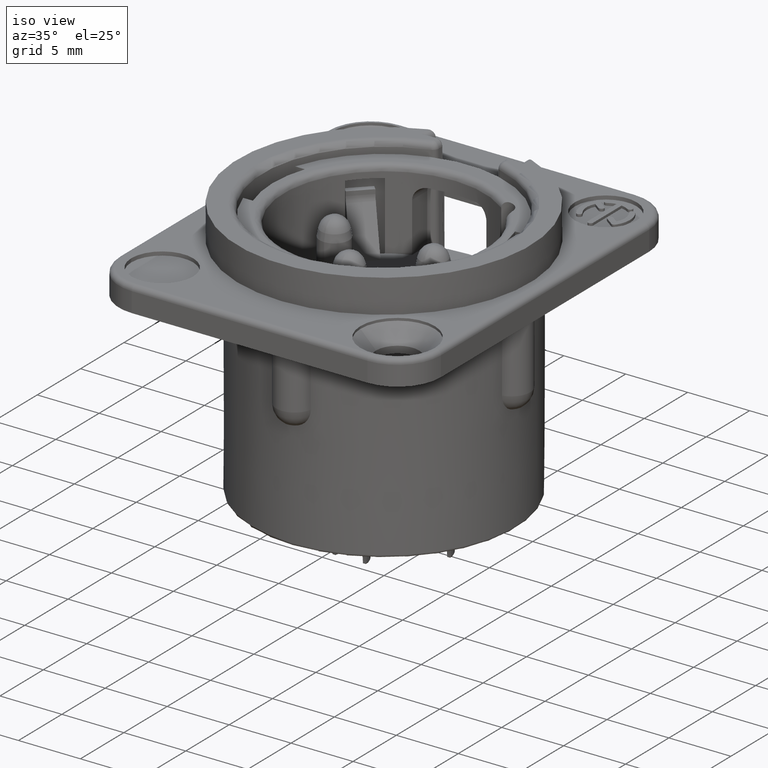
[diagram: clean part render]
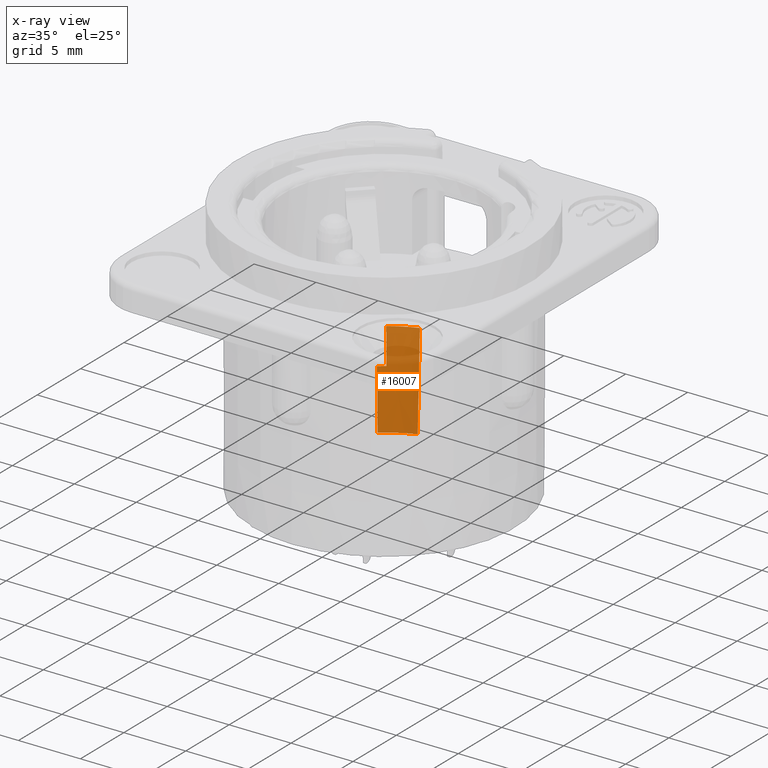
[diagram: x-ray — body ghosted, one internal face saturated and labeled with its STEP entity id]
A machine part, iso view, then the same camera in x-ray: the body is ghosted and one INTERNAL B-rep face — a face not visible from any outside direction — is saturated and labeled: STEP entity #16007.
In plain terms, the highlighted conical surface has half-angle 1 deg.
Its self-contained STEP definition (entity closure, byte-faithful):
#2466=CARTESIAN_POINT('',(-5.599421644429E0,7.184534697666E0,
-1.149650951871E1));
#2467=CARTESIAN_POINT('',(-5.599346924432E0,7.184558939496E0,
-1.149804555295E1));
#2468=CARTESIAN_POINT('',(-5.599221330165E0,7.184588562005E0,
-1.150113001574E1));
#2469=CARTESIAN_POINT('',(-5.599143221622E0,7.184580643993E0,
-1.150423849977E1));
#2470=CARTESIAN_POINT('',(-5.599115990569E0,7.184567341980E0,
-1.150579856576E1));
#2472=CARTESIAN_POINT('',(0.E0,0.E0,-1.149650951871E1));
#2473=DIRECTION('',(0.E0,0.E0,-1.E0));
#2474=DIRECTION('',(-6.147235459580E-1,7.887426462699E-1,0.E0));
#2475=AXIS2_PLACEMENT_3D('',#2472,#2473,#2474);
#2477=CARTESIAN_POINT('',(0.E0,0.E0,-8.594764278069E0));
#2478=DIRECTION('',(0.E0,0.E0,1.E0));
#2479=DIRECTION('',(-3.416517116455E-1,9.398266371676E-1,0.E0));
#2480=AXIS2_PLACEMENT_3D('',#2477,#2478,#2479);
#2482=CARTESIAN_POINT('',(-3.129357351968E0,8.608337723482E0,
-8.594764278072E0));
#2483=CARTESIAN_POINT('',(-3.135616155525E0,8.591554376119E0,
-9.375918961649E0));
#2484=CARTESIAN_POINT('',(-3.148561647450E0,8.556866188820E0,
-1.098766886962E1));
#2485=CARTESIAN_POINT('',(-3.168922513493E0,8.502395970706E0,
-1.350919662458E1));
#2486=CARTESIAN_POINT('',(-3.183860185164E0,8.462504858787E0,
-1.534831740524E1));
#2487=CARTESIAN_POINT('',(-3.191616471074E0,8.441813153089E0,-1.63E1));
#2489=CARTESIAN_POINT('',(0.E0,0.E0,-1.63E1));
#2490=DIRECTION('',(0.E0,0.E0,1.E0));
#2491=DIRECTION('',(-3.536417139729E-1,9.353809588282E-1,0.E0));
#2492=AXIS2_PLACEMENT_3D('',#2489,#2490,#2491);
#2662=CARTESIAN_POINT('',(-5.088876992249E0,7.554759594576E0,
-1.149650951871E1));
#2777=CARTESIAN_POINT('',(-3.191616471074E0,8.441813153089E0,-1.63E1));
#3995=CARTESIAN_POINT('',(-5.515432893255E0,7.143572285629E0,-1.63E1));
#3996=CARTESIAN_POINT('',(-5.543327253168E0,7.157276511483E0,
-1.470193319089E1));
#3997=CARTESIAN_POINT('',(-5.571221618989E0,7.170941306577E0,
-1.310386604328E1));
#3998=CARTESIAN_POINT('',(-5.599115990569E0,7.184567341980E0,
-1.150579856576E1));
#4030=CARTESIAN_POINT('',(-5.137515058787E0,7.583026758278E0,
-8.594764278069E0));
#4031=CARTESIAN_POINT('',(-5.132101906482E0,7.579882375847E0,
-8.917845470713E0));
#4032=CARTESIAN_POINT('',(-5.121281567828E0,7.573595995002E0,
-9.563564475408E0));
#4033=CARTESIAN_POINT('',(-5.105068889147E0,7.564173627915E0,
-1.053081190704E1));
#4034=CARTESIAN_POINT('',(-5.094272312435E0,7.557896811170E0,
-1.117475800539E1));
#4035=CARTESIAN_POINT('',(-5.088876992249E0,7.554759594576E0,
-1.149650951871E1));
#12360=CARTESIAN_POINT('',(-3.129357277739E0,8.608337750360E0,
-8.594764278069E0));
#12361=CARTESIAN_POINT('',(-5.137515026759E0,7.583026779976E0,
-8.594764278069E0));
#12362=VERTEX_POINT('',#12360);
#12363=VERTEX_POINT('',#12361);
#12371=VERTEX_POINT('',#2777);
#12372=CARTESIAN_POINT('',(-5.515432893255E0,7.143572285629E0,-1.63E1));
#12373=VERTEX_POINT('',#12372);
#12578=VERTEX_POINT('',#2662);
#12591=VERTEX_POINT('',#2466);
#12592=VERTEX_POINT('',#2470);
#15986=CARTESIAN_POINT('',(0.E0,0.E0,-1.244738213903E1));
#15987=DIRECTION('',(0.E0,0.E0,1.E0));
#15988=DIRECTION('',(0.E0,1.E0,0.E0));
#15989=AXIS2_PLACEMENT_3D('',#15986,#15987,#15988);
#15990=CONICAL_SURFACE('',#15989,9.092247694907E0,1.E0);
#15992=ORIENTED_EDGE('',*,*,#15991,.F.);
#15994=ORIENTED_EDGE('',*,*,#15993,.T.);
#15996=ORIENTED_EDGE('',*,*,#15995,.F.);
#15998=ORIENTED_EDGE('',*,*,#15997,.F.);
#16000=ORIENTED_EDGE('',*,*,#15999,.T.);
#16002=ORIENTED_EDGE('',*,*,#16001,.T.);
#16004=ORIENTED_EDGE('',*,*,#16003,.T.);
#16005=EDGE_LOOP('',(#15992,#15994,#15996,#15998,#16000,#16002,#16004));
#16006=FACE_OUTER_BOUND('',#16005,.F.);
#16007=ADVANCED_FACE('',(#16006),#15990,.F.);
#2471=B_SPLINE_CURVE_WITH_KNOTS('',3,(#2466,#2467,#2468,#2469,#2470),
.UNSPECIFIED.,.F.,.F.,(4,1,4),(0.E0,5.E-1,1.E0),.UNSPECIFIED.);
#2476=CIRCLE('',#2475,9.108845238233E0);
#2481=CIRCLE('',#2480,9.159495389814E0);
#2488=B_SPLINE_CURVE_WITH_KNOTS('',3,(#2482,#2483,#2484,#2485,#2486,#2487),
.UNSPECIFIED.,.F.,.F.,(4,1,1,4),(0.E0,3.333333333333E-1,6.666666666667E-1,1.E0),
.UNSPECIFIED.);
#2493=CIRCLE('',#2492,9.025E0);
#3999=B_SPLINE_CURVE_WITH_KNOTS('',3,(#3995,#3996,#3997,#3998),.UNSPECIFIED.,
.F.,.F.,(4,4),(0.E0,1.E0),.UNSPECIFIED.);
#4036=B_SPLINE_CURVE_WITH_KNOTS('',3,(#4030,#4031,#4032,#4033,#4034,#4035),
.UNSPECIFIED.,.F.,.F.,(4,1,1,4),(0.E0,3.333333333333E-1,6.666666666667E-1,1.E0),
.UNSPECIFIED.);
#15991=EDGE_CURVE('',#12591,#12592,#2471,.T.);
#15993=EDGE_CURVE('',#12591,#12578,#2476,.T.);
#15995=EDGE_CURVE('',#12363,#12578,#4036,.T.);
#15997=EDGE_CURVE('',#12362,#12363,#2481,.T.);
#15999=EDGE_CURVE('',#12362,#12371,#2488,.T.);
#16001=EDGE_CURVE('',#12371,#12373,#2493,.T.);
#16003=EDGE_CURVE('',#12373,#12592,#3999,.T.);